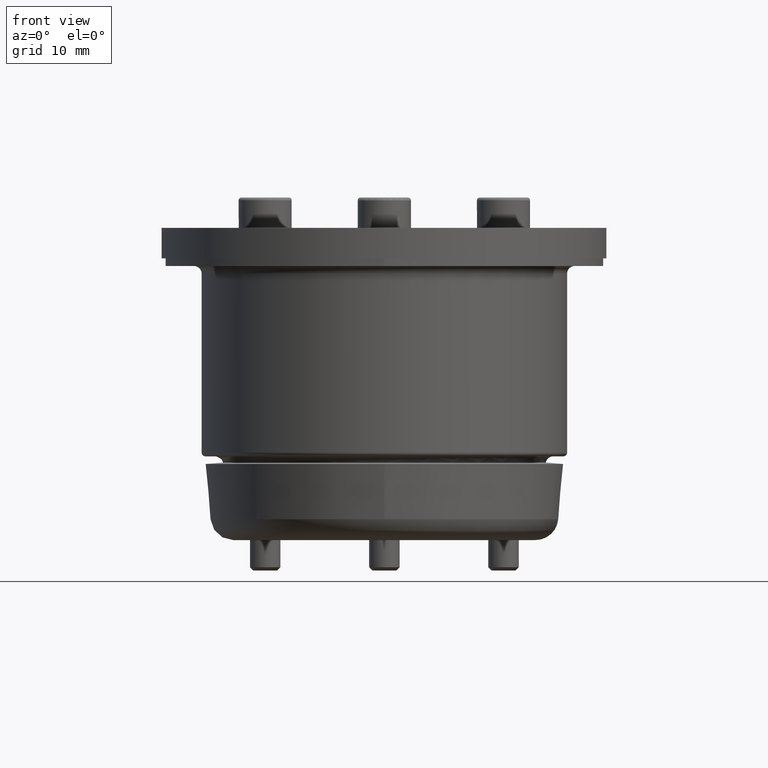
[diagram: clean part render]
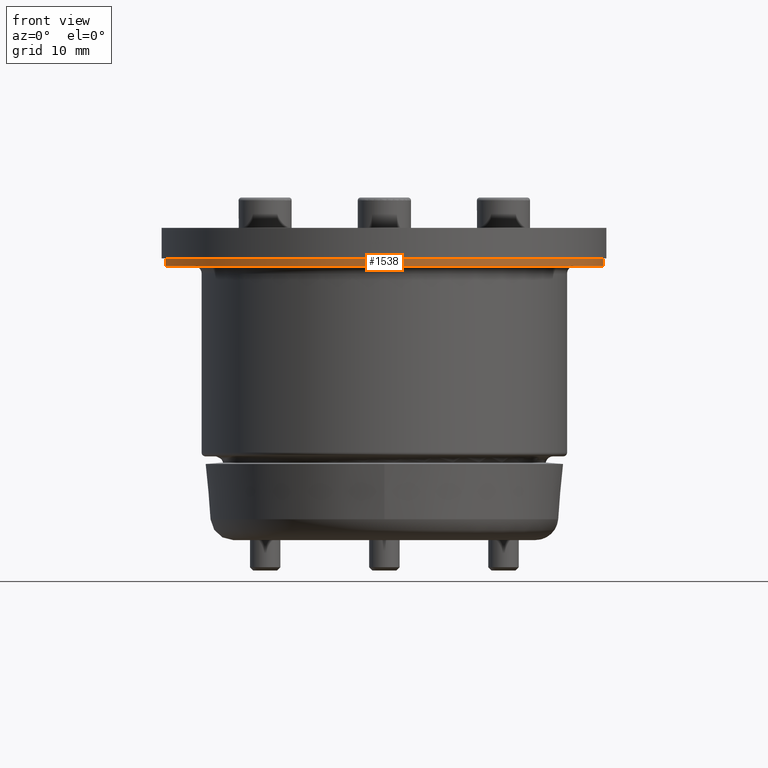
[diagram: same view with one face highlighted and labeled with its STEP entity id]
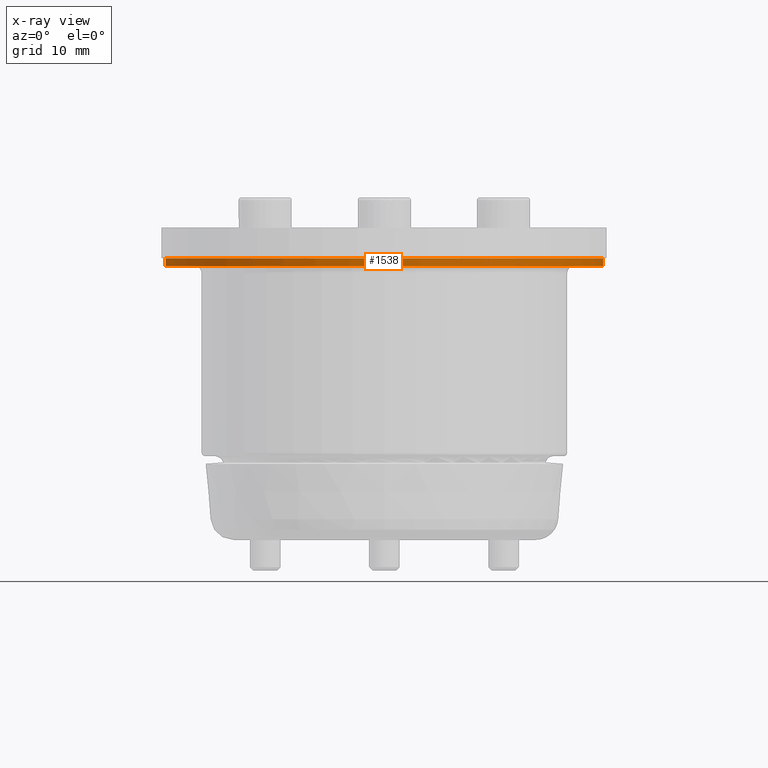
[diagram: x-ray of the same camera — body ghosted, the highlighted face saturated]
A machine part, front view. The second image highlights one B-rep face of the part: STEP entity #1538.
The next image is the same camera in x-ray: the body ghosted, the highlighted face saturated — about 0% of this face is hidden behind the body in this view.
In plain terms, the highlighted cylindrical surface (bore or boss wall) has radius 28.75 mm, axis along (-0, 0, 1).
Its self-contained STEP definition (entity closure, byte-faithful):
#79=CYLINDRICAL_SURFACE('',#1823,28.75);
#191=LINE('',#2734,#253);
#253=VECTOR('',#2224,25.75);
#345=FACE_OUTER_BOUND('',#444,.T.);
#444=EDGE_LOOP('',(#1248,#1249,#1250,#1251));
#541=CIRCLE('',#1728,28.75);
#555=CIRCLE('',#1749,28.75);
#690=VERTEX_POINT('',#2558);
#702=VERTEX_POINT('',#2591);
#849=EDGE_CURVE('',#690,#690,#541,.T.);
#863=EDGE_CURVE('',#702,#702,#555,.T.);
#934=EDGE_CURVE('',#702,#690,#191,.T.);
#1248=ORIENTED_EDGE('',*,*,#863,.F.);
#1249=ORIENTED_EDGE('',*,*,#934,.T.);
#1250=ORIENTED_EDGE('',*,*,#849,.T.);
#1251=ORIENTED_EDGE('',*,*,#934,.F.);
#1538=ADVANCED_FACE('',(#345),#79,.T.);
#1728=AXIS2_PLACEMENT_3D('',#2559,#2012,#2013);
#1749=AXIS2_PLACEMENT_3D('',#2592,#2054,#2055);
#1823=AXIS2_PLACEMENT_3D('',#2733,#2222,#2223);
#2012=DIRECTION('center_axis',(0.,-1.83697019872103E-16,1.));
#2013=DIRECTION('ref_axis',(0.,-1.,-1.83697019872103E-16));
#2054=DIRECTION('center_axis',(0.,0.,1.));
#2055=DIRECTION('ref_axis',(0.,-1.,-1.83697019872103E-16));
#2222=DIRECTION('center_axis',(0.,-1.83697019872103E-16,1.));
#2223=DIRECTION('ref_axis',(0.,-1.,-1.83697019872103E-16));
#2224=DIRECTION('',(0.,1.83697019872103E-16,-1.));
#2558=CARTESIAN_POINT('',(-3.52085954754864E-15,28.75,34.));
#2559=CARTESIAN_POINT('Origin',(0.,-6.2456986756515E-15,34.));
#2591=CARTESIAN_POINT('',(-3.52085954754864E-15,28.75,35.));
#2592=CARTESIAN_POINT('Origin',(0.,-6.4293956955236E-15,35.));
#2733=CARTESIAN_POINT('Origin',(0.,-6.33754718558755E-15,34.5));
#2734=CARTESIAN_POINT('',(-3.52085954754864E-15,28.75,34.5));